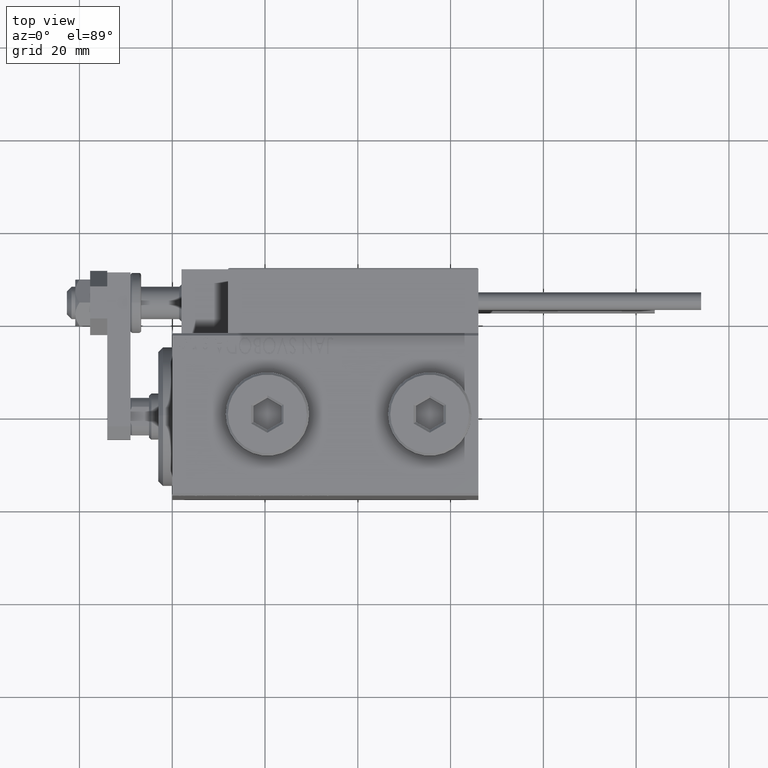
[diagram: clean part render]
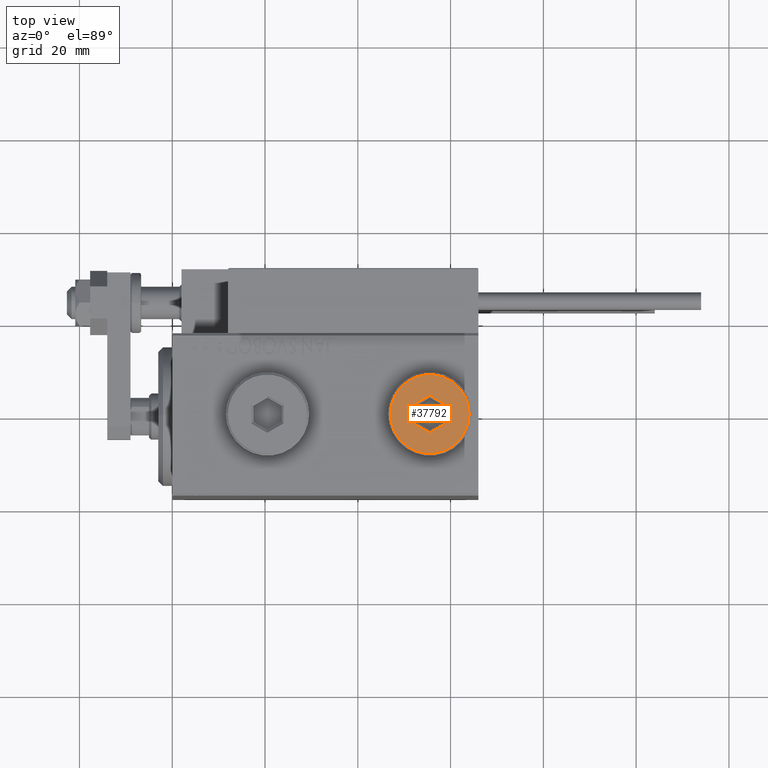
[diagram: same view with one face highlighted and labeled with its STEP entity id]
A machine part, top view. The second image highlights one B-rep face of the part: STEP entity #37792.
In plain terms, the highlighted planar face has unit normal (0, 0, 1).
Its self-contained STEP definition (entity closure, byte-faithful):
#880 = ORIENTED_EDGE ( 'NONE', *, *, #35294, .T. ) ;
#1801 = AXIS2_PLACEMENT_3D ( 'NONE', #28000, #7824, #24270 ) ;
#1979 = ORIENTED_EDGE ( 'NONE', *, *, #19828, .T. ) ;
#2087 = LINE ( 'NONE', #31279, #22589 ) ;
#2702 = LINE ( 'NONE', #34575, #37845 ) ;
#3129 = LINE ( 'NONE', #19336, #13434 ) ;
#4488 = FACE_BOUND ( 'NONE', #11376, .T. ) ;
#6797 = CARTESIAN_POINT ( 'NONE',  ( -8.500000000000010658, 0.000000000000000000, 5.000000000000000000 ) ) ;
#6966 = DIRECTION ( 'NONE',  ( 0.000000000000000000, 1.000000000000000000, 0.000000000000000000 ) ) ;
#7645 = EDGE_LOOP ( 'NONE', ( #880, #39314 ) ) ;
#7824 = DIRECTION ( 'NONE',  ( 0.000000000000000000, 0.000000000000000000, 1.000000000000000000 ) ) ;
#7982 = CARTESIAN_POINT ( 'NONE',  ( -3.500000000000006661, -2.020725942163694278, 5.000000000000000000 ) ) ;
#8421 = EDGE_CURVE ( 'NONE', #29115, #9539, #2702, .T. ) ;
#8468 = DIRECTION ( 'NONE',  ( 0.000000000000000000, 0.000000000000000000, 1.000000000000000000 ) ) ;
#8737 = PLANE ( 'NONE',  #41433 ) ;
#8855 = LINE ( 'NONE', #25314, #28241 ) ;
#9539 = VERTEX_POINT ( 'NONE', #7982 ) ;
#11376 = EDGE_LOOP ( 'NONE', ( #1979, #28575, #27185, #48088, #42258, #31482 ) ) ;
#11963 = VERTEX_POINT ( 'NONE', #35776 ) ;
#12993 = DIRECTION ( 'NONE',  ( 1.000000000000000000, 0.000000000000000000, 0.000000000000000000 ) ) ;
#13376 = DIRECTION ( 'NONE',  ( 0.000000000000000000, -1.000000000000000000, 0.000000000000000000 ) ) ;
#13434 = VECTOR ( 'NONE', #31541, 1000.000000000000000 ) ;
#16190 = EDGE_CURVE ( 'NONE', #27401, #50827, #50255, .T. ) ;
#16882 = CARTESIAN_POINT ( 'NONE',  ( -3.500000000000006661, 2.020725942163692945, 5.000000000000000000 ) ) ;
#16958 = FACE_OUTER_BOUND ( 'NONE', #7645, .T. ) ;
#17593 = AXIS2_PLACEMENT_3D ( 'NONE', #45618, #41385, #12993 ) ;
#17602 = DIRECTION ( 'NONE',  ( 0.8660254037844387076, -0.4999999999999998890, 0.000000000000000000 ) ) ;
#17968 = VERTEX_POINT ( 'NONE', #36138 ) ;
#18646 = VERTEX_POINT ( 'NONE', #16882 ) ;
#19336 = CARTESIAN_POINT ( 'NONE',  ( -0.2500000000000027756, 3.897114317029978459, 5.000000000000000000 ) ) ;
#19710 = EDGE_CURVE ( 'NONE', #17968, #40214, #32309, .T. ) ;
#19828 = EDGE_CURVE ( 'NONE', #9539, #18646, #43335, .T. ) ;
#20685 = CARTESIAN_POINT ( 'NONE',  ( 0.000000000000000000, 0.000000000000000000, 5.000000000000000000 ) ) ;
#22589 = VECTOR ( 'NONE', #26778, 1000.000000000000000 ) ;
#23839 = EDGE_CURVE ( 'NONE', #11963, #27401, #8855, .T. ) ;
#24270 = DIRECTION ( 'NONE',  ( 1.000000000000000000, 0.000000000000000000, 0.000000000000000000 ) ) ;
#24344 = CIRCLE ( 'NONE', #17593, 8.500000000000010658 ) ;
#25048 = CARTESIAN_POINT ( 'NONE',  ( -1.006139216460143630E-15, -4.041451884327387667, 5.000000000000000000 ) ) ;
#25314 = CARTESIAN_POINT ( 'NONE',  ( 3.250000000000003109, 2.165063509461103042, 5.000000000000000000 ) ) ;
#26778 = DIRECTION ( 'NONE',  ( -0.8660254037844387076, -0.4999999999999998890, 0.000000000000000000 ) ) ;
#27185 = ORIENTED_EDGE ( 'NONE', *, *, #23839, .T. ) ;
#27401 = VERTEX_POINT ( 'NONE', #41038 ) ;
#28000 = CARTESIAN_POINT ( 'NONE',  ( 0.000000000000000000, 0.000000000000000000, 5.000000000000000000 ) ) ;
#28241 = VECTOR ( 'NONE', #17602, 1000.000000000000000 ) ;
#28575 = ORIENTED_EDGE ( 'NONE', *, *, #36606, .T. ) ;
#29115 = VERTEX_POINT ( 'NONE', #25048 ) ;
#30644 = VECTOR ( 'NONE', #6966, 1000.000000000000000 ) ;
#31279 = CARTESIAN_POINT ( 'NONE',  ( 0.2500000000000027756, -3.897114317029979347, 5.000000000000000000 ) ) ;
#31482 = ORIENTED_EDGE ( 'NONE', *, *, #8421, .T. ) ;
#31541 = DIRECTION ( 'NONE',  ( 0.8660254037844387076, 0.4999999999999998335, 0.000000000000000000 ) ) ;
#31632 = DIRECTION ( 'NONE',  ( -0.8660254037844385966, 0.4999999999999999445, 0.000000000000000000 ) ) ;
#32309 = CIRCLE ( 'NONE', #1801, 8.500000000000010658 ) ;
#33130 = EDGE_CURVE ( 'NONE', #50827, #29115, #2087, .T. ) ;
#33167 = DIRECTION ( 'NONE',  ( 1.000000000000000000, 0.000000000000000000, -0.000000000000000000 ) ) ;
#34575 = CARTESIAN_POINT ( 'NONE',  ( -3.250000000000003109, -2.165063509461102598, 5.000000000000000000 ) ) ;
#35294 = EDGE_CURVE ( 'NONE', #40214, #17968, #24344, .T. ) ;
#35645 = CARTESIAN_POINT ( 'NONE',  ( -3.500000000000006661, 1.732050807568878081, 5.000000000000000000 ) ) ;
#35776 = CARTESIAN_POINT ( 'NONE',  ( 1.590596867181068292E-15, 4.041451884327386779, 5.000000000000000000 ) ) ;
#36138 = CARTESIAN_POINT ( 'NONE',  ( 8.500000000000010658, 1.071565949253934716E-15, 5.000000000000000000 ) ) ;
#36606 = EDGE_CURVE ( 'NONE', #18646, #11963, #3129, .T. ) ;
#37792 = ADVANCED_FACE ( 'NONE', ( #4488, #16958 ), #8737, .T. ) ;
#37845 = VECTOR ( 'NONE', #31632, 1000.000000000000114 ) ;
#38026 = CARTESIAN_POINT ( 'NONE',  ( 3.500000000000006661, -2.020725942163693833, 5.000000000000000000 ) ) ;
#38987 = VECTOR ( 'NONE', #13376, 1000.000000000000000 ) ;
#39314 = ORIENTED_EDGE ( 'NONE', *, *, #19710, .T. ) ;
#40214 = VERTEX_POINT ( 'NONE', #6797 ) ;
#41038 = CARTESIAN_POINT ( 'NONE',  ( 3.500000000000006661, 2.020725942163694722, 5.000000000000000000 ) ) ;
#41385 = DIRECTION ( 'NONE',  ( 0.000000000000000000, 0.000000000000000000, 1.000000000000000000 ) ) ;
#41433 = AXIS2_PLACEMENT_3D ( 'NONE', #20685, #8468, #33167 ) ;
#41515 = CARTESIAN_POINT ( 'NONE',  ( 3.500000000000006661, -1.732050807568878303, 5.000000000000000000 ) ) ;
#42258 = ORIENTED_EDGE ( 'NONE', *, *, #33130, .T. ) ;
#43335 = LINE ( 'NONE', #35645, #30644 ) ;
#45618 = CARTESIAN_POINT ( 'NONE',  ( 0.000000000000000000, 0.000000000000000000, 5.000000000000000000 ) ) ;
#48088 = ORIENTED_EDGE ( 'NONE', *, *, #16190, .T. ) ;
#50255 = LINE ( 'NONE', #41515, #38987 ) ;
#50827 = VERTEX_POINT ( 'NONE', #38026 ) ;